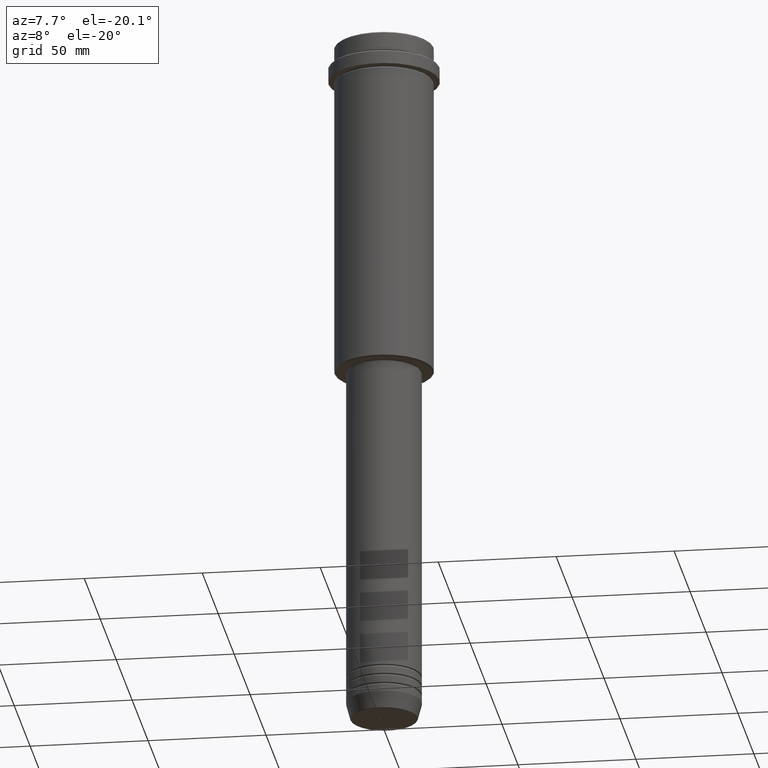
[diagram: clean part render]
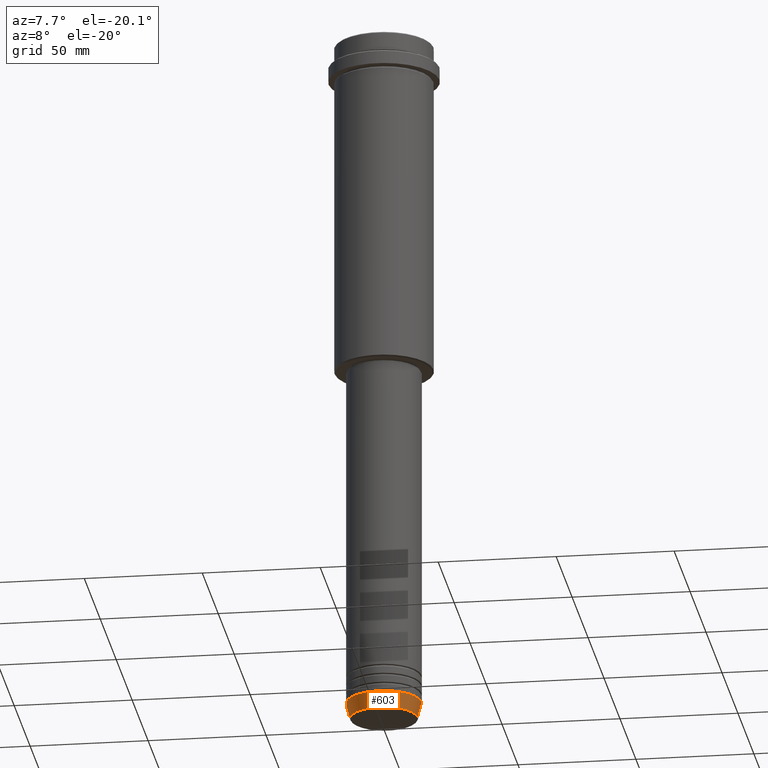
[diagram: same view with one face highlighted and labeled with its STEP entity id]
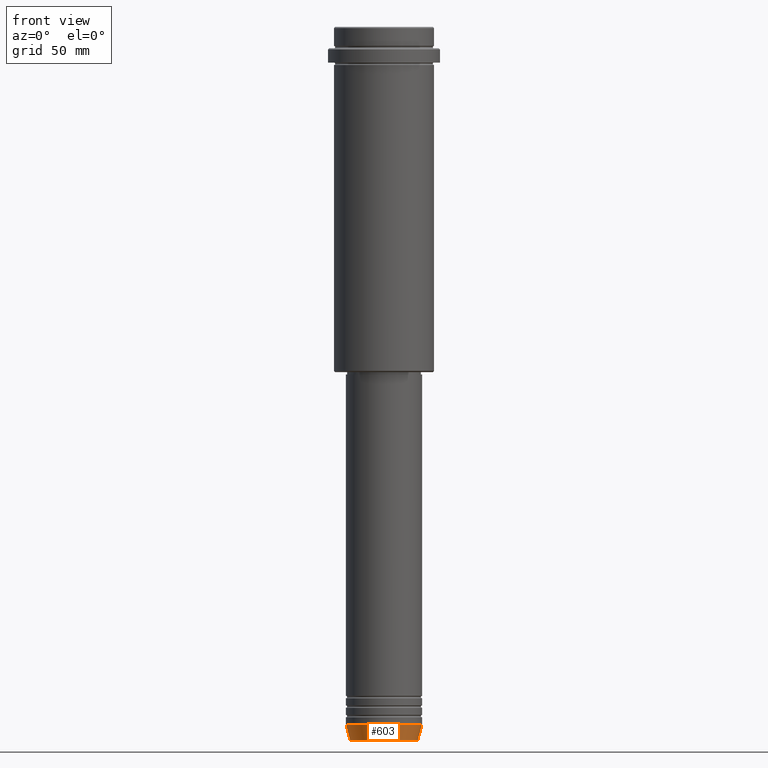
[diagram: same view with one face highlighted and labeled with its STEP entity id]
A machine part, auxiliary view. The second image highlights one B-rep face of the part: STEP entity #603.
A second angle (front view) of the same face is appended — the face is thin or edge-on in the first view.
In plain terms, the highlighted conical surface has half-angle 15 deg.
Its self-contained STEP definition (entity closure, byte-faithful):
#6 = CARTESIAN_POINT ( 'NONE',  ( 14.22365507213718772, 0.000000000000000000, -299.6294095225512137 ) ) ;
#15 = VERTEX_POINT ( 'NONE', #1279 ) ;
#63 = VECTOR ( 'NONE', #152, 1000.000000000000000 ) ;
#77 = EDGE_CURVE ( 'NONE', #1203, #621, #228, .T. ) ;
#151 = ORIENTED_EDGE ( 'NONE', *, *, #77, .F. ) ;
#152 = DIRECTION ( 'NONE',  ( 0.2588190451025213501, 0.000000000000000000, 0.9659258262890680902 ) ) ;
#223 = DIRECTION ( 'NONE',  ( 1.000000000000000000, 0.000000000000000000, 0.000000000000000000 ) ) ;
#228 = LINE ( 'NONE', #671, #1237 ) ;
#317 = DIRECTION ( 'NONE',  ( -0.2588190451025213501, 3.169619151431772337E-17, 0.9659258262890680902 ) ) ;
#339 = DIRECTION ( 'NONE',  ( -0.000000000000000000, -0.000000000000000000, 1.000000000000000000 ) ) ;
#354 = CARTESIAN_POINT ( 'NONE',  ( 0.000000000000000000, 0.000000000000000000, -293.0000000000000000 ) ) ;
#371 = ORIENTED_EDGE ( 'NONE', *, *, #624, .T. ) ;
#372 = AXIS2_PLACEMENT_3D ( 'NONE', #788, #339, #1132 ) ;
#419 = CARTESIAN_POINT ( 'NONE',  ( 0.000000000000000000, 0.000000000000000000, -293.0000000000000000 ) ) ;
#533 = VERTEX_POINT ( 'NONE', #6 ) ;
#547 = CARTESIAN_POINT ( 'NONE',  ( -16.00000000000000000, 1.959434878635765131E-15, -293.0000000000000000 ) ) ;
#603 = ADVANCED_FACE ( 'NONE', ( #787 ), #701, .T. ) ;
#621 = VERTEX_POINT ( 'NONE', #547 ) ;
#624 = EDGE_CURVE ( 'NONE', #533, #15, #1012, .T. ) ;
#665 = CARTESIAN_POINT ( 'NONE',  ( 16.00000000000000000, 0.000000000000000000, -293.0000000000000000 ) ) ;
#671 = CARTESIAN_POINT ( 'NONE',  ( -16.00000000000000000, 1.959434878635765131E-15, -293.0000000000000000 ) ) ;
#687 = DIRECTION ( 'NONE',  ( 1.000000000000000000, 0.000000000000000000, 0.000000000000000000 ) ) ;
#701 = CONICAL_SURFACE ( 'NONE', #1284, 16.00000000000000000, 0.2617993877991500740 ) ;
#740 = DIRECTION ( 'NONE',  ( -0.000000000000000000, -0.000000000000000000, 1.000000000000000000 ) ) ;
#787 = FACE_OUTER_BOUND ( 'NONE', #1410, .T. ) ;
#788 = CARTESIAN_POINT ( 'NONE',  ( 0.000000000000000000, 0.000000000000000000, -299.6294095225512137 ) ) ;
#820 = AXIS2_PLACEMENT_3D ( 'NONE', #419, #740, #223 ) ;
#985 = ORIENTED_EDGE ( 'NONE', *, *, #1362, .T. ) ;
#1004 = ORIENTED_EDGE ( 'NONE', *, *, #1148, .F. ) ;
#1012 = LINE ( 'NONE', #665, #63 ) ;
#1053 = CIRCLE ( 'NONE', #372, 14.22365507213718772 ) ;
#1058 = CIRCLE ( 'NONE', #820, 16.00000000000000000 ) ;
#1129 = DIRECTION ( 'NONE',  ( -0.000000000000000000, -0.000000000000000000, 1.000000000000000000 ) ) ;
#1132 = DIRECTION ( 'NONE',  ( 1.000000000000000000, 0.000000000000000000, 0.000000000000000000 ) ) ;
#1148 = EDGE_CURVE ( 'NONE', #621, #15, #1058, .T. ) ;
#1203 = VERTEX_POINT ( 'NONE', #1280 ) ;
#1237 = VECTOR ( 'NONE', #317, 1000.000000000000000 ) ;
#1279 = CARTESIAN_POINT ( 'NONE',  ( 16.00000000000000000, 0.000000000000000000, -293.0000000000000000 ) ) ;
#1280 = CARTESIAN_POINT ( 'NONE',  ( -14.22365507213718772, 1.850665122131323337E-15, -299.6294095225512137 ) ) ;
#1284 = AXIS2_PLACEMENT_3D ( 'NONE', #354, #1129, #687 ) ;
#1362 = EDGE_CURVE ( 'NONE', #1203, #533, #1053, .T. ) ;
#1410 = EDGE_LOOP ( 'NONE', ( #151, #985, #371, #1004 ) ) ;